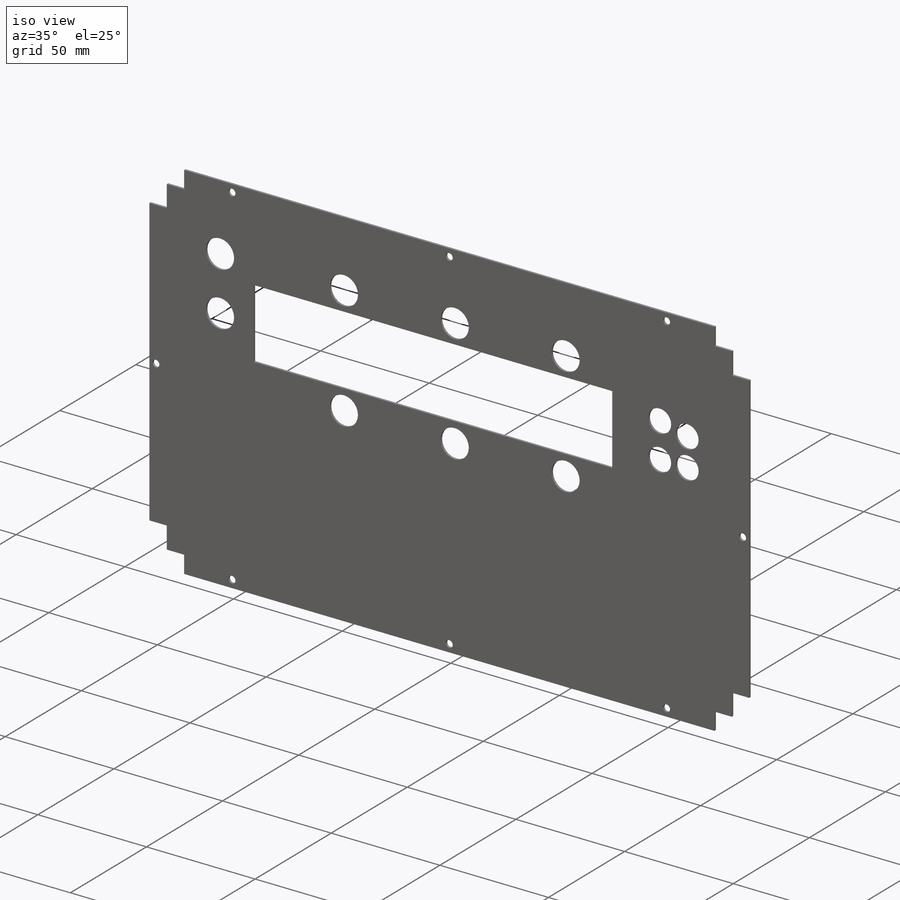
[diagram: iso view]
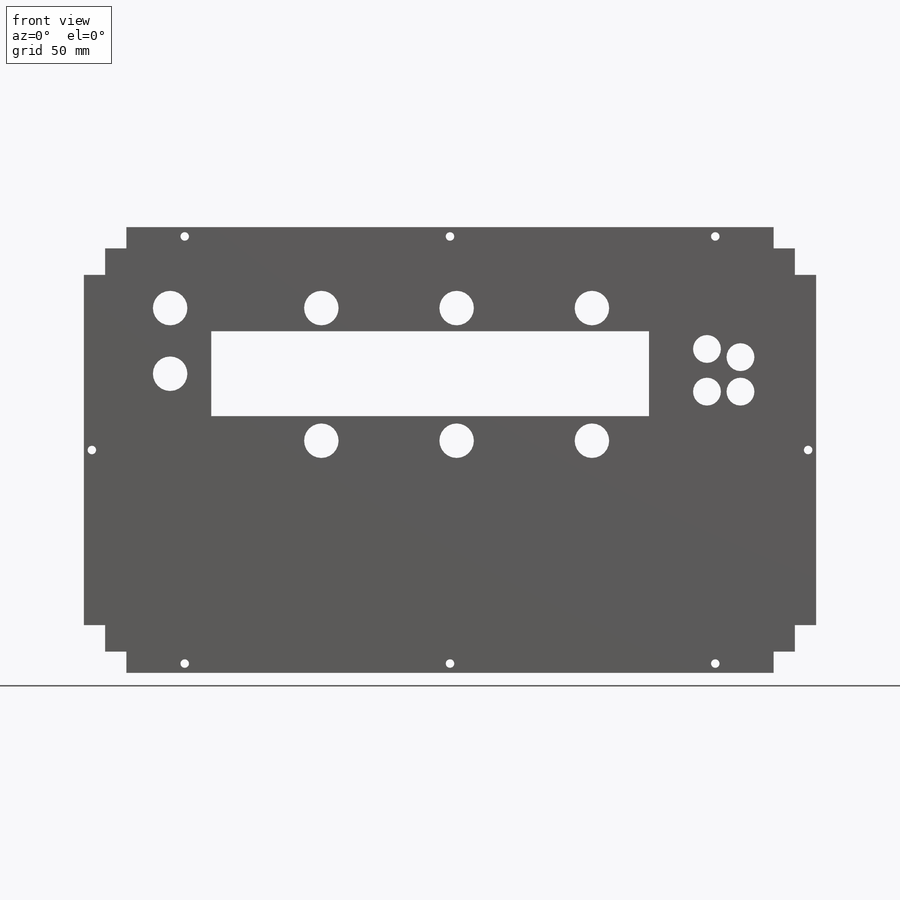
[diagram: front view]
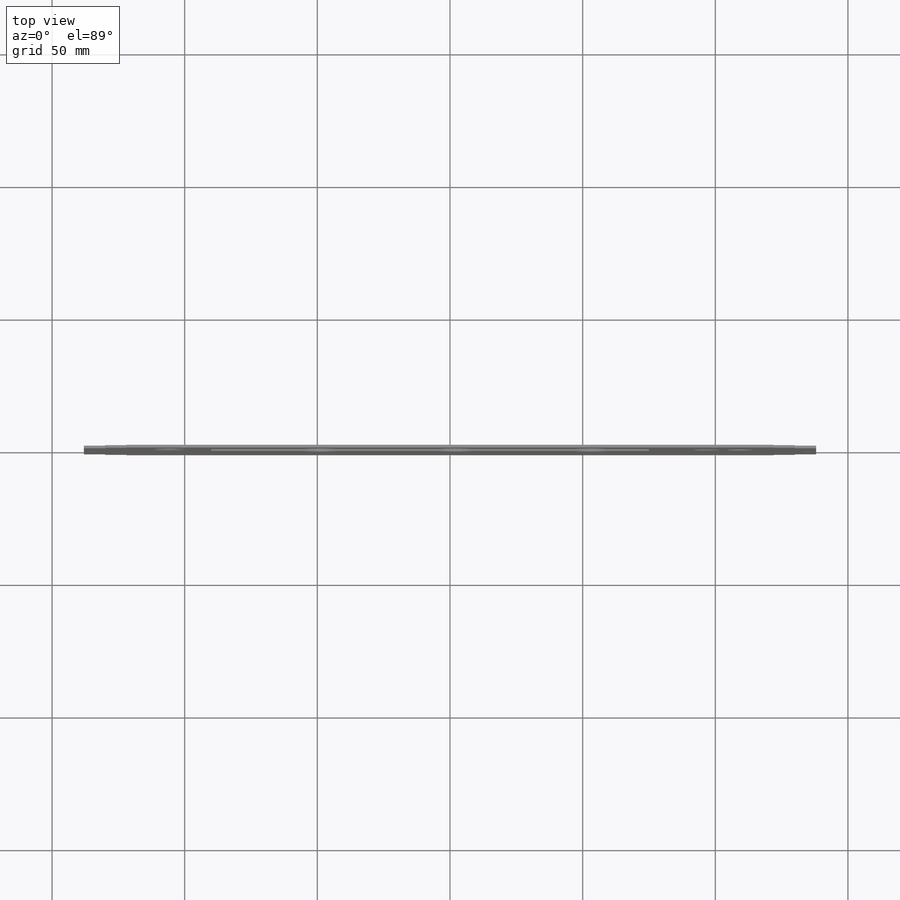
[diagram: top view]
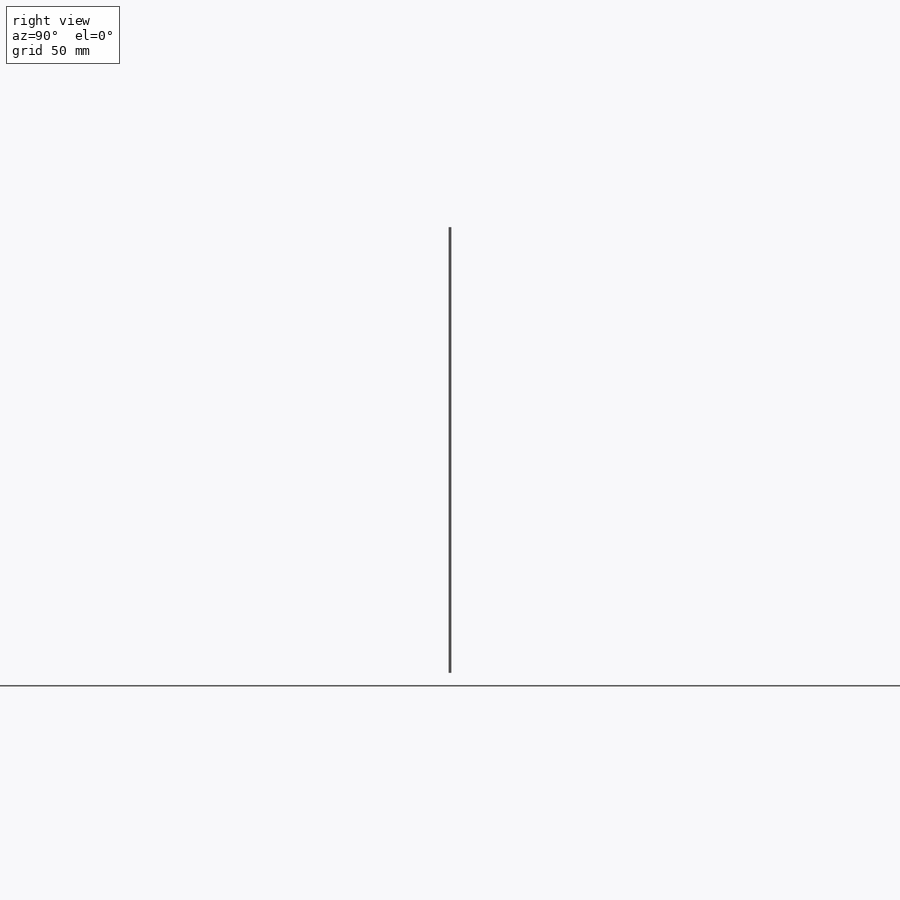
[diagram: right view]
SOLIDWORKS PART (.sldprt)
format: sldprt  version: not decoded by parser v0  size: 301,568 bytes
history: native  units: mm
features: sketch x4, cut_extrude x3, material x1, extrude x1 (+12 scaffold rows collapsed)
feature tree (21):
  scaffold x12  (default folders/planes/origin — collapsed)
  material  "7079 Alloy"
  sketch  "Sketch1"  dims[c1.D1=174.0mm c1.D2=284.0mm c1.D3=8.0mm c1.D4=8.0mm c1.D5=16.0mm c1.D6=10.0mm c2.D1=244.0mm c2.D2=132.0mm]
  extrude  "Extrude1"  Depth=1mm
  sketch  "Sketch2"  dims[D1=32.0mm D2=165.0mm D3=39.25mm D4=63.0mm D5=56.0mm]
  cut_extrude  "Cut-Extrude1"  Depth=1mm
  sketch  "Sketch3"  dims[c1.D1=13.0mm c1.D2=13.0mm c1.D3=13.0mm c1.D5=13.0mm c1.D6=13.0mm c1.D7=13.0mm c1.D8=13.0mm c1.D9=10.5mm c1.D10=10.5mm c1.D11=10.5mm c1.D12=10.5mm c1.D13=10.5mm c2.D2=30.5mm c2.D3=24.75mm c2.D4=32.5mm c2.D5=80.5mm c2.D6=57.0mm c2.D7=51.0mm c2.D8=51.0mm c2.D10=13.0mm c2.D11=28.5mm c2.D12=49.0mm c2.D13=13.0mm]
  cut_extrude  "Cut-Extrude2"  Depth=1mm
  sketch  "Esboço1"  dims[c1.D1=~11.551443mm c1.D2=~17.024975mm c1.D3=3.2mm c1.D4=3.2mm c1.D5=3.2mm c1.D6=~10.907642mm c1.D7=~10.907642mm c1.D8=3.2mm c1.D9=3.2mm c1.D10=3.2mm c1.D11=3.2mm c1.D12=3.2mm c2.D1=100.0mm c2.D2=100.0mm c2.D6=270.0mm c2.D7=135.0mm c2.D10=163.0mm c2.D11=163.0mm c2.D12=161.0mm]
  cut_extrude  "Corte-extrusão1"  [1 undecoded]
decode coverage: 7 of 8 modeling features carry decoded parameters
note: ~ marks probable driven/reference dimensions
note: 1 parameter value undecoded
note: suppression state not decoded; provenance and decode notes live in map.json
